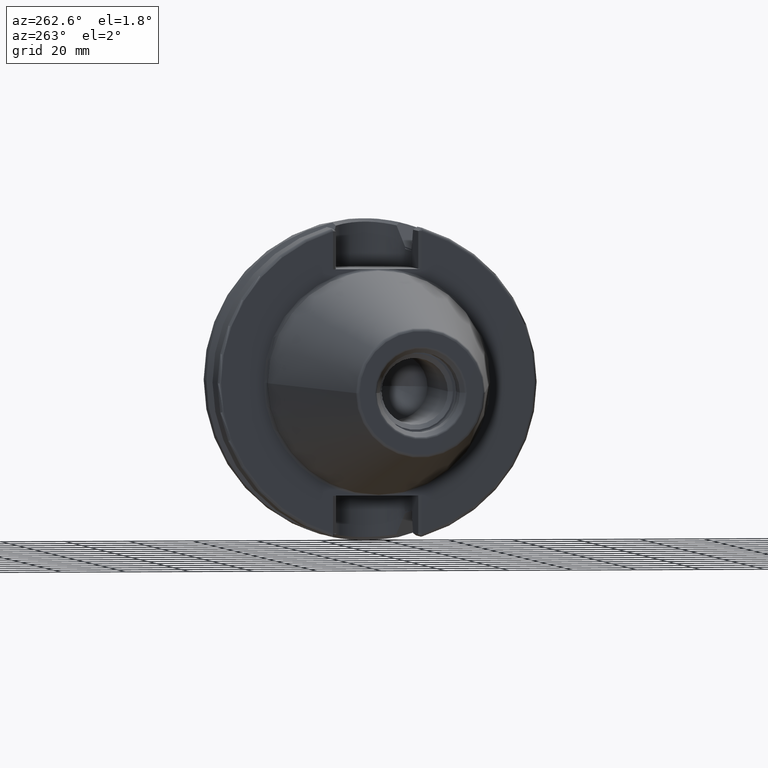
[diagram: clean part render]
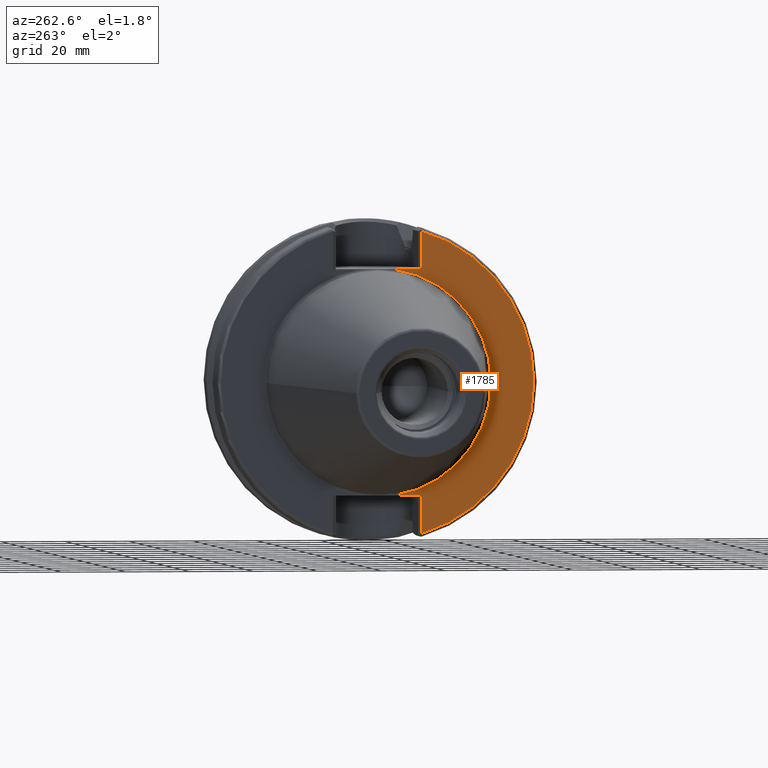
[diagram: same view with one face highlighted and labeled with its STEP entity id]
A machine part, auxiliary view. The second image highlights one B-rep face of the part: STEP entity #1785.
In plain terms, the highlighted planar face has unit normal (1, 0, 0).
Its self-contained STEP definition (entity closure, byte-faithful):
#111=CARTESIAN_POINT('',(3.E0,0.E0,0.E0));
#112=DIRECTION('',(-1.E0,0.E0,0.E0));
#113=DIRECTION('',(0.E0,-1.448140381786E-1,-9.894588896697E-1));
#114=AXIS2_PLACEMENT_3D('',#111,#112,#113);
#135=DIRECTION('',(-5.798787725116E-7,5.799135254102E-7,-9.999999999997E-1));
#136=VECTOR('',#135,1.177335004623E1);
#137=CARTESIAN_POINT('',(3.E0,-1.39025E1,-3.52E1));
#138=LINE('',#137,#136);
#139=DIRECTION('',(1.226013541690E-6,-1.226161370859E-6,-9.999999999985E-1));
#140=VECTOR('',#139,1.177335390066E1);
#141=CARTESIAN_POINT('',(2.999985565709E0,-1.390248556397E1,4.697335390064E1));
#142=LINE('',#141,#140);
#593=CARTESIAN_POINT('',(2.999993172884E0,-1.390249317248E1,-4.697335004622E1));
#605=CARTESIAN_POINT('',(3.E0,0.E0,0.E0));
#606=DIRECTION('',(-1.E0,0.E0,0.E0));
#607=DIRECTION('',(0.E0,-2.837968955579E-1,-9.588844153868E-1));
#608=AXIS2_PLACEMENT_3D('',#605,#606,#607);
#679=DIRECTION('',(0.E0,1.E0,0.E0));
#680=VECTOR('',#679,8.750740591798E0);
#681=CARTESIAN_POINT('',(3.E0,-1.39025E1,3.52E1));
#682=LINE('',#681,#680);
#720=CARTESIAN_POINT('',(3.E0,0.E0,0.E0));
#721=DIRECTION('',(1.E0,0.E0,0.E0));
#722=DIRECTION('',(0.E0,-1.448140381786E-1,9.894588896697E-1));
#723=AXIS2_PLACEMENT_3D('',#720,#721,#722);
#745=DIRECTION('',(0.E0,-1.E0,0.E0));
#746=VECTOR('',#745,8.750740591798E0);
#747=CARTESIAN_POINT('',(3.E0,-5.151759408202E0,-3.52E1));
#748=LINE('',#747,#746);
#1380=CARTESIAN_POINT('',(3.E0,-3.5575E1,0.E0));
#1382=VERTEX_POINT('',#1380);
#1446=CARTESIAN_POINT('',(3.E0,-5.151759408202E0,3.52E1));
#1447=VERTEX_POINT('',#1446);
#1454=CARTESIAN_POINT('',(3.E0,-5.151759408202E0,-3.52E1));
#1455=VERTEX_POINT('',#1454);
#1484=CARTESIAN_POINT('',(2.999985565709E0,-1.390248556397E1,4.697335390064E1));
#1485=CARTESIAN_POINT('',(3.E0,-1.39025E1,3.52E1));
#1486=VERTEX_POINT('',#1484);
#1487=VERTEX_POINT('',#1485);
#1509=VERTEX_POINT('',#593);
#1511=CARTESIAN_POINT('',(3.E0,-1.39025E1,-3.52E1));
#1512=VERTEX_POINT('',#1511);
#1765=CARTESIAN_POINT('',(3.E0,0.E0,0.E0));
#1766=DIRECTION('',(1.E0,0.E0,0.E0));
#1767=DIRECTION('',(0.E0,-1.E0,0.E0));
#1768=AXIS2_PLACEMENT_3D('',#1765,#1766,#1767);
#1769=PLANE('',#1768);
#1771=ORIENTED_EDGE('',*,*,#1770,.F.);
#1773=ORIENTED_EDGE('',*,*,#1772,.F.);
#1774=ORIENTED_EDGE('',*,*,#1737,.T.);
#1776=ORIENTED_EDGE('',*,*,#1775,.F.);
#1778=ORIENTED_EDGE('',*,*,#1777,.F.);
#1780=ORIENTED_EDGE('',*,*,#1779,.F.);
#1782=ORIENTED_EDGE('',*,*,#1781,.F.);
#1783=EDGE_LOOP('',(#1771,#1773,#1774,#1776,#1778,#1780,#1782));
#1784=FACE_OUTER_BOUND('',#1783,.F.);
#1785=ADVANCED_FACE('',(#1784),#1769,.F.);
#115=CIRCLE('',#114,3.5575E1);
#609=CIRCLE('',#608,4.89875E1);
#724=CIRCLE('',#723,3.5575E1);
#1737=EDGE_CURVE('',#1455,#1382,#115,.T.);
#1770=EDGE_CURVE('',#1512,#1509,#138,.T.);
#1772=EDGE_CURVE('',#1455,#1512,#748,.T.);
#1775=EDGE_CURVE('',#1447,#1382,#724,.T.);
#1777=EDGE_CURVE('',#1487,#1447,#682,.T.);
#1779=EDGE_CURVE('',#1486,#1487,#142,.T.);
#1781=EDGE_CURVE('',#1509,#1486,#609,.T.);